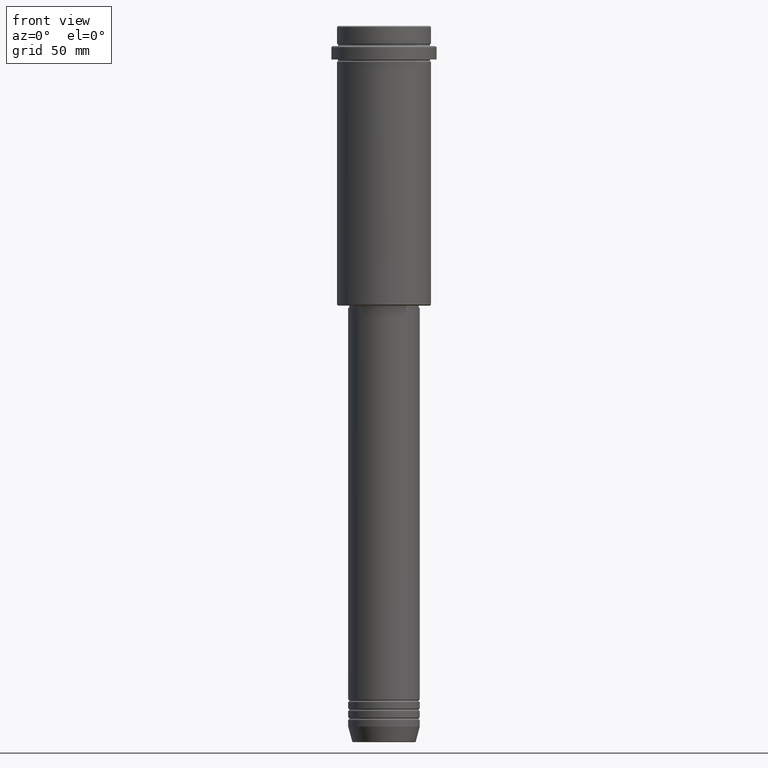
[diagram: clean part render]
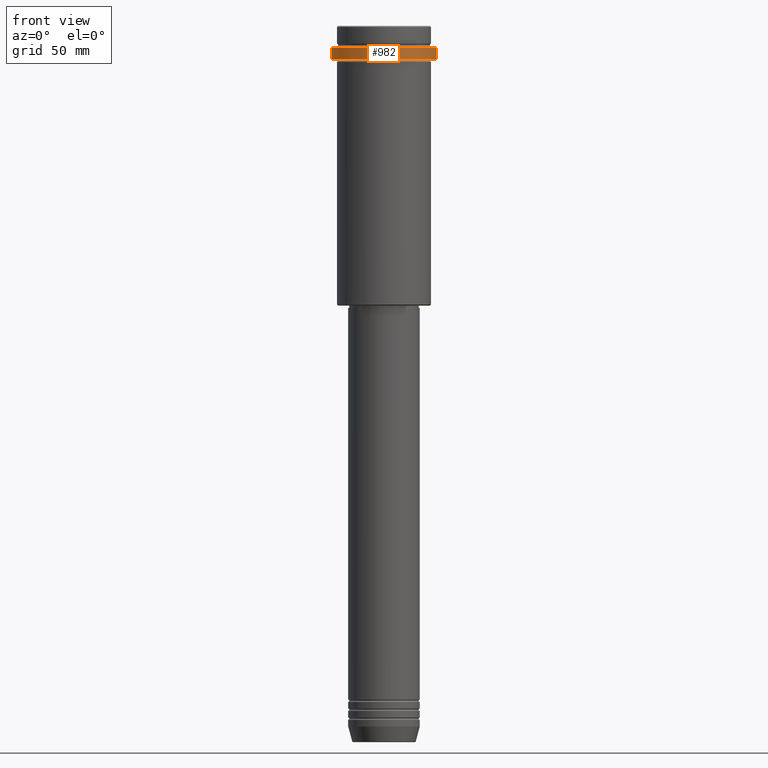
[diagram: same view with one face highlighted and labeled with its STEP entity id]
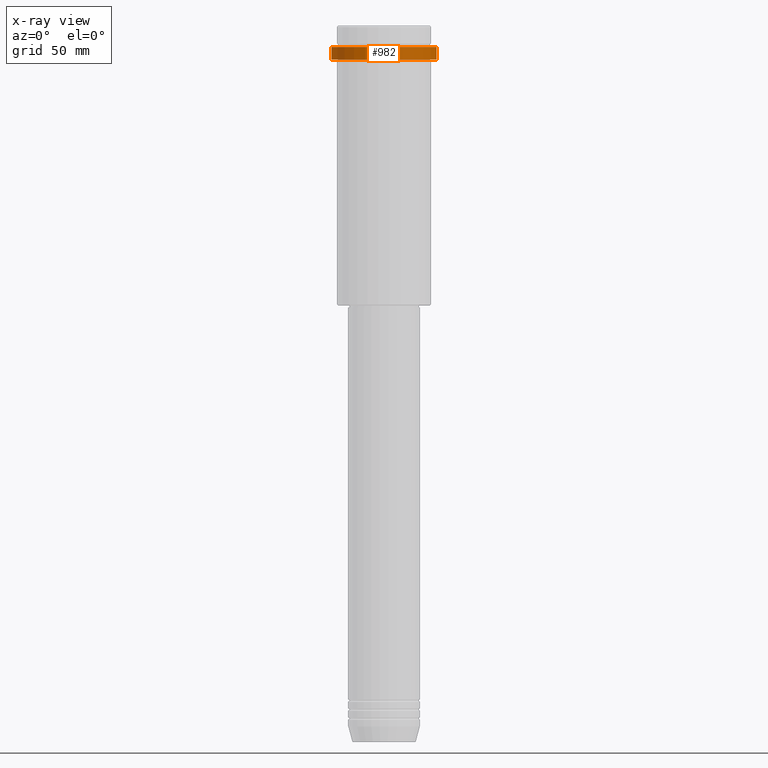
[diagram: x-ray of the same camera — body ghosted, the highlighted face saturated]
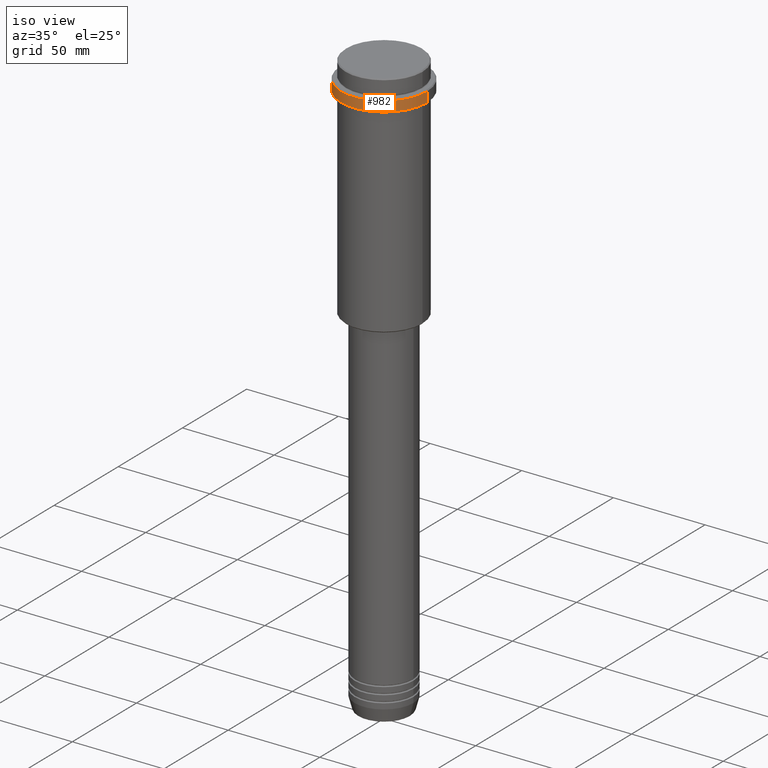
[diagram: same view with one face highlighted and labeled with its STEP entity id]
A machine part, front view. The second image highlights one B-rep face of the part: STEP entity #982.
The next image is the same camera in x-ray: the body ghosted, the highlighted face saturated — about 0% of this face is hidden behind the body in this view.
A second angle (iso view) of the same face is appended — the face is thin or edge-on in the first view.
In plain terms, the highlighted cylindrical surface (partial cylindrical patch) has radius 23.5 mm, axis along (-0, -0, 1).
Its self-contained STEP definition (entity closure, byte-faithful):
#6 = EDGE_CURVE ( 'NONE', #955, #1124, #327, .T. ) ;
#43 = DIRECTION ( 'NONE',  ( 1.000000000000000000, 0.000000000000000000, 0.000000000000000000 ) ) ;
#79 = VERTEX_POINT ( 'NONE', #1390 ) ;
#114 = EDGE_CURVE ( 'NONE', #1149, #79, #490, .T. ) ;
#192 = DIRECTION ( 'NONE',  ( 1.000000000000000000, 0.000000000000000000, 0.000000000000000000 ) ) ;
#194 = ORIENTED_EDGE ( 'NONE', *, *, #114, .T. ) ;
#264 = DIRECTION ( 'NONE',  ( -0.000000000000000000, -0.000000000000000000, 1.000000000000000000 ) ) ;
#268 = LINE ( 'NONE', #1370, #1251 ) ;
#294 = CYLINDRICAL_SURFACE ( 'NONE', #699, 23.50000000000000000 ) ;
#303 = EDGE_CURVE ( 'NONE', #1124, #1149, #802, .T. ) ;
#327 = CIRCLE ( 'NONE', #1135, 23.50000000000000355 ) ;
#336 = ORIENTED_EDGE ( 'NONE', *, *, #303, .T. ) ;
#480 = CARTESIAN_POINT ( 'NONE',  ( 23.50000000000000000, 0.000000000000000000, 0.000000000000000000 ) ) ;
#490 = CIRCLE ( 'NONE', #621, 23.50000000000000000 ) ;
#621 = AXIS2_PLACEMENT_3D ( 'NONE', #962, #1401, #1296 ) ;
#699 = AXIS2_PLACEMENT_3D ( 'NONE', #729, #1173, #192 ) ;
#729 = CARTESIAN_POINT ( 'NONE',  ( 0.000000000000000000, 0.000000000000000000, 0.000000000000000000 ) ) ;
#753 = ORIENTED_EDGE ( 'NONE', *, *, #1198, .F. ) ;
#802 = LINE ( 'NONE', #480, #1082 ) ;
#888 = CARTESIAN_POINT ( 'NONE',  ( 23.50000000000000355, 0.000000000000000000, -15.00000000000000178 ) ) ;
#955 = VERTEX_POINT ( 'NONE', #1298 ) ;
#962 = CARTESIAN_POINT ( 'NONE',  ( 0.000000000000000000, 0.000000000000000000, -9.499999999999973355 ) ) ;
#982 = ADVANCED_FACE ( 'NONE', ( #1276 ), #294, .T. ) ;
#1031 = DIRECTION ( 'NONE',  ( -0.000000000000000000, -0.000000000000000000, 1.000000000000000000 ) ) ;
#1082 = VECTOR ( 'NONE', #1354, 1000.000000000000000 ) ;
#1124 = VERTEX_POINT ( 'NONE', #888 ) ;
#1135 = AXIS2_PLACEMENT_3D ( 'NONE', #1243, #264, #43 ) ;
#1149 = VERTEX_POINT ( 'NONE', #1220 ) ;
#1173 = DIRECTION ( 'NONE',  ( -0.000000000000000000, -0.000000000000000000, 1.000000000000000000 ) ) ;
#1198 = EDGE_CURVE ( 'NONE', #955, #79, #268, .T. ) ;
#1211 = ORIENTED_EDGE ( 'NONE', *, *, #6, .T. ) ;
#1220 = CARTESIAN_POINT ( 'NONE',  ( 23.50000000000000000, 0.000000000000000000, -9.499999999999973355 ) ) ;
#1243 = CARTESIAN_POINT ( 'NONE',  ( 0.000000000000000000, 0.000000000000000000, -15.00000000000000178 ) ) ;
#1251 = VECTOR ( 'NONE', #1031, 1000.000000000000000 ) ;
#1276 = FACE_OUTER_BOUND ( 'NONE', #1395, .T. ) ;
#1296 = DIRECTION ( 'NONE',  ( 1.000000000000000000, 0.000000000000000000, 0.000000000000000000 ) ) ;
#1298 = CARTESIAN_POINT ( 'NONE',  ( -23.50000000000000711, 2.877919977996281109E-15, -15.00000000000000178 ) ) ;
#1354 = DIRECTION ( 'NONE',  ( -0.000000000000000000, -0.000000000000000000, 1.000000000000000000 ) ) ;
#1370 = CARTESIAN_POINT ( 'NONE',  ( -23.50000000000000000, 2.877919977996280320E-15, 0.000000000000000000 ) ) ;
#1390 = CARTESIAN_POINT ( 'NONE',  ( -23.50000000000000000, 2.877919977996280320E-15, -9.499999999999973355 ) ) ;
#1395 = EDGE_LOOP ( 'NONE', ( #753, #1211, #336, #194 ) ) ;
#1401 = DIRECTION ( 'NONE',  ( 0.000000000000000000, 0.000000000000000000, -1.000000000000000000 ) ) ;